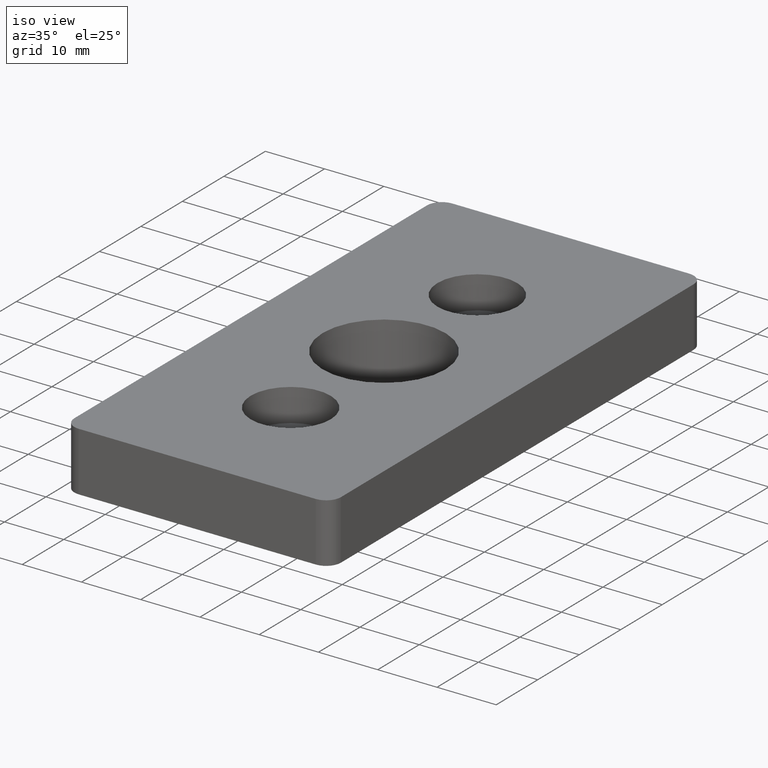
[diagram: clean part render]
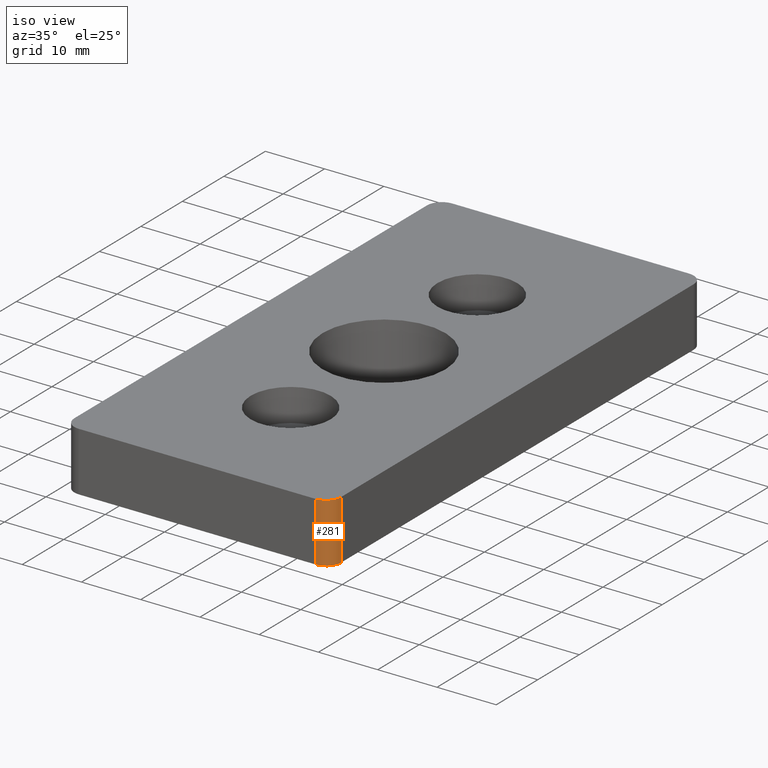
[diagram: same view with one face highlighted and labeled with its STEP entity id]
A machine part, iso view. The second image highlights one B-rep face of the part: STEP entity #281.
In plain terms, the highlighted cylindrical surface (edge-blend (fillet) strip) has radius 2.5 mm, axis along (0, 0, 1).
Its self-contained STEP definition (entity closure, byte-faithful):
#23=LINE('',#466,#39);
#24=LINE('',#472,#40);
#39=VECTOR('',#384,10.);
#40=VECTOR('',#391,10.);
#79=FACE_OUTER_BOUND('',#103,.T.);
#103=EDGE_LOOP('',(#223,#224,#225,#226));
#129=CIRCLE('',#315,2.5);
#130=CIRCLE('',#316,2.5);
#151=VERTEX_POINT('',#462);
#152=VERTEX_POINT('',#464);
#153=VERTEX_POINT('',#468);
#154=VERTEX_POINT('',#470);
#181=EDGE_CURVE('',#151,#152,#23,.T.);
#182=EDGE_CURVE('',#153,#151,#129,.T.);
#183=EDGE_CURVE('',#154,#152,#130,.T.);
#184=EDGE_CURVE('',#153,#154,#24,.T.);
#223=ORIENTED_EDGE('',*,*,#182,.T.);
#224=ORIENTED_EDGE('',*,*,#181,.T.);
#225=ORIENTED_EDGE('',*,*,#183,.F.);
#226=ORIENTED_EDGE('',*,*,#184,.F.);
#268=CYLINDRICAL_SURFACE('',#314,2.5);
#281=ADVANCED_FACE('',(#79),#268,.T.);
#314=AXIS2_PLACEMENT_3D('',#467,#385,#386);
#315=AXIS2_PLACEMENT_3D('',#469,#387,#388);
#316=AXIS2_PLACEMENT_3D('',#471,#389,#390);
#384=DIRECTION('',(0.,0.,1.));
#385=DIRECTION('center_axis',(0.,0.,1.));
#386=DIRECTION('ref_axis',(0.,-1.,0.));
#387=DIRECTION('center_axis',(0.,0.,1.));
#388=DIRECTION('ref_axis',(0.,-1.,0.));
#389=DIRECTION('center_axis',(0.,0.,1.));
#390=DIRECTION('ref_axis',(0.,-1.,0.));
#391=DIRECTION('',(0.,0.,1.));
#462=CARTESIAN_POINT('',(47.6256764380845,3.10133355293328,0.));
#464=CARTESIAN_POINT('',(47.6256764380845,3.10133355293328,10.));
#466=CARTESIAN_POINT('',(47.6256764380845,3.10133355293328,0.));
#467=CARTESIAN_POINT('Origin',(45.1256764380845,3.10133355293328,0.));
#468=CARTESIAN_POINT('',(45.1256764380845,0.601333552933284,0.));
#469=CARTESIAN_POINT('Origin',(45.1256764380845,3.10133355293328,0.));
#470=CARTESIAN_POINT('',(45.1256764380845,0.601333552933276,10.));
#471=CARTESIAN_POINT('Origin',(45.1256764380845,3.10133355293328,10.));
#472=CARTESIAN_POINT('',(45.1256764380845,0.601333552933284,0.));